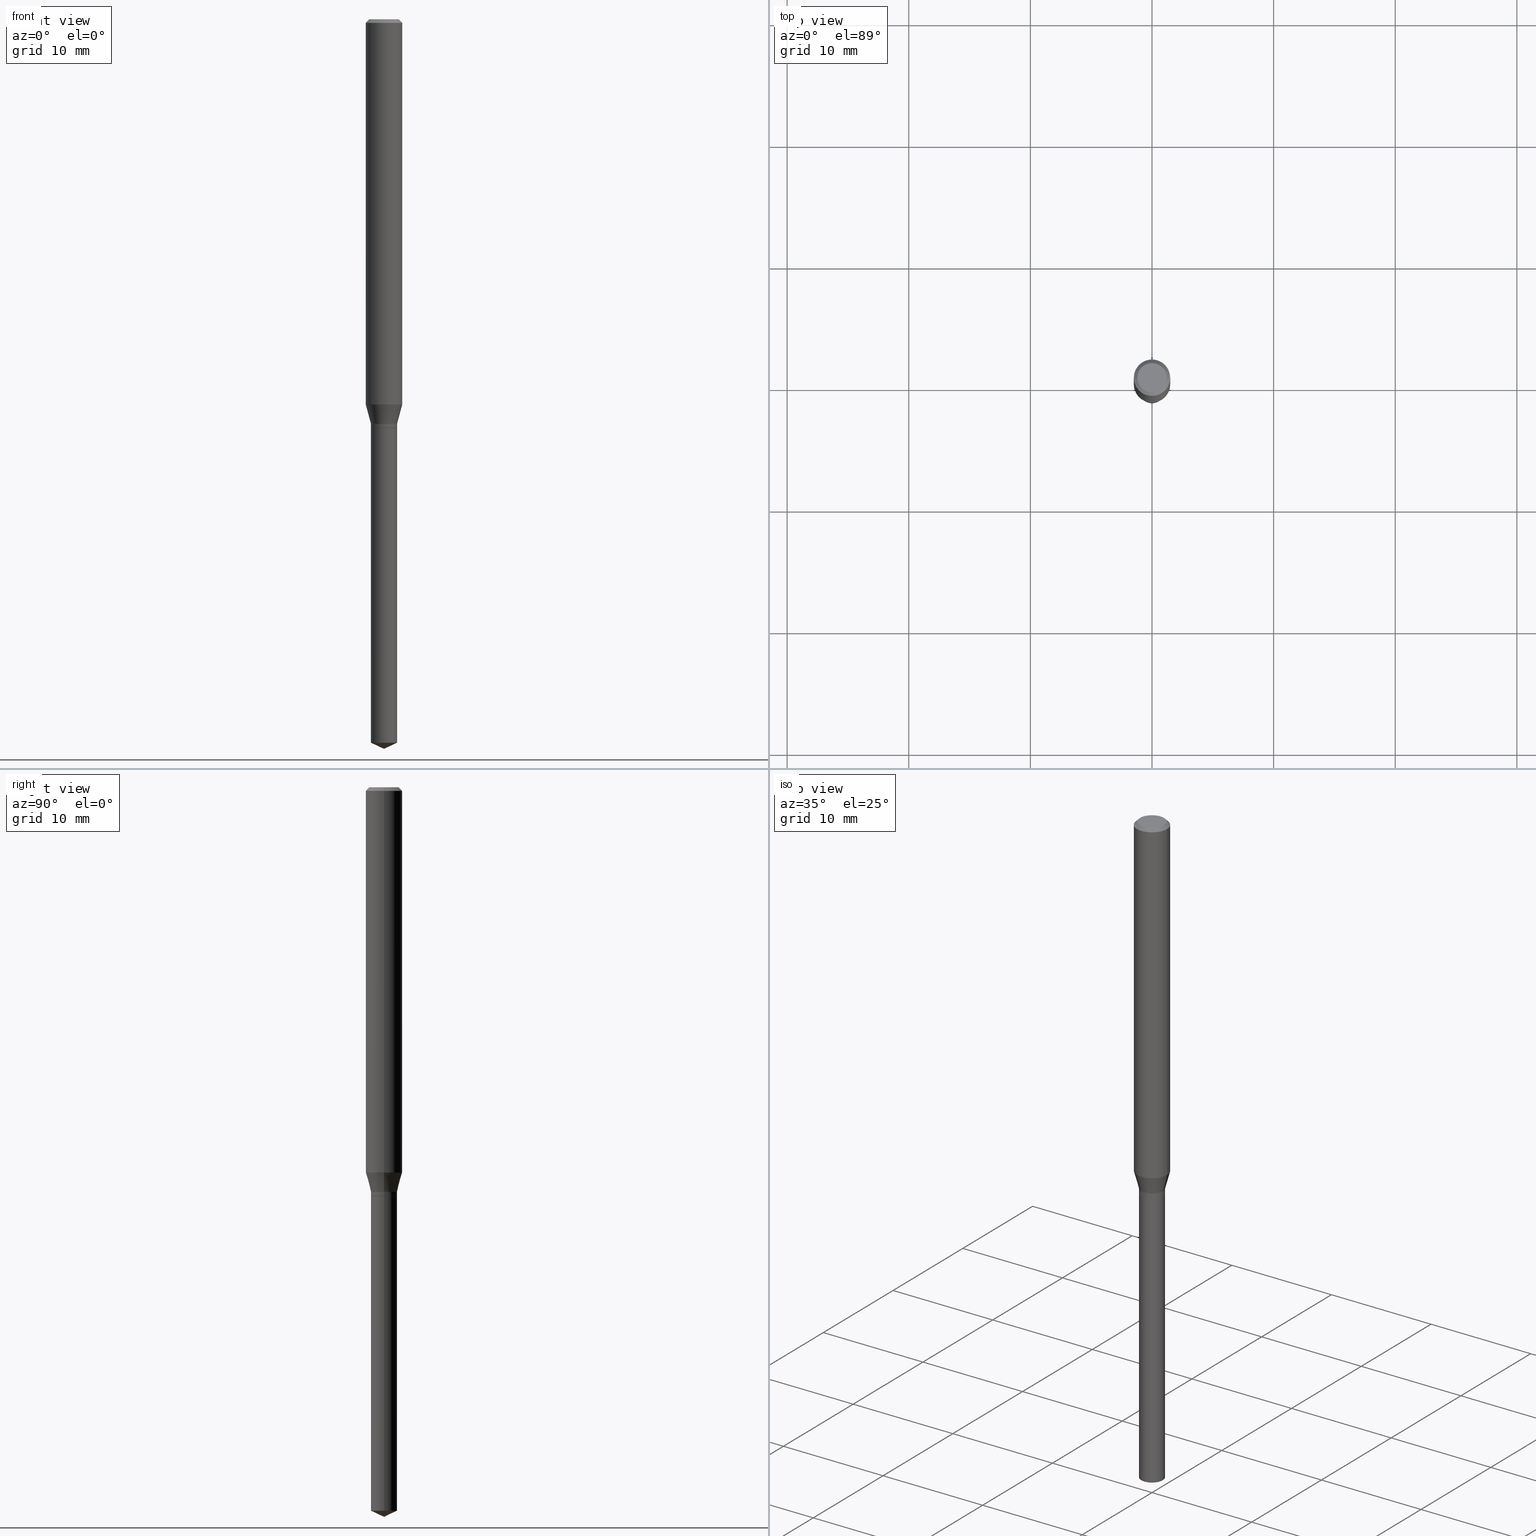
[diagram: canonical four-view strip — front | top / right | iso, engineering-drawing reading convention]
A machine part, canonical four-view strip (front | top / right | iso — engineering-drawing reading convention). The complete STEP part file that produces these views, byte-faithful:
ISO-10303-21;
HEADER;
FILE_DESCRIPTION (( 'STEP AP203' ),
    '1' );
FILE_NAME ('08193.STEP',
    '2024-04-24T13:45:29',
    ( '' ),
    ( '' ),
    'SwSTEP 2.0',
    'SolidWorks 2023',
    '' );
FILE_SCHEMA (( 'CONFIG_CONTROL_DESIGN' ));
ENDSEC;

DATA;
#1 = CARTESIAN_POINT ( 'NONE',  ( -0.04230000000000002508, -4.294229864691057211E-15, -1.322100000000000053 ) ) ;
#2 = ORIENTED_EDGE ( 'NONE', *, *, #438, .T. ) ;
#3 = CC_DESIGN_DATE_AND_TIME_ASSIGNMENT ( #237, #474, ( #322 ) ) ;
#4 = DIRECTION ( 'NONE',  ( -0.7071067811868312347, 7.493145998871379679E-15, 0.7071067811862637997 ) ) ;
#5 = LINE ( 'NONE', #273, #191 ) ;
#6 = ORIENTED_EDGE ( 'NONE', *, *, #185, .F. ) ;
#7 = CARTESIAN_POINT ( 'NONE',  ( 3.234377043060460432E-29, -4.617833218753942678E-15, -1.322599999999999776 ) ) ;
#8 = CARTESIAN_POINT ( 'NONE',  ( 0.04179999999999999688, -4.909721058681229119E-15, -1.322599999999999776 ) ) ;
#9 = VERTEX_POINT ( 'NONE', #319 ) ;
#10 = FACE_OUTER_BOUND ( 'NONE', #358, .T. ) ;
#11 = AXIS2_PLACEMENT_3D ( 'NONE', #379, #41, #77 ) ;
#12 = CARTESIAN_POINT ( 'NONE',  ( -0.04230000000000002508, 3.005595772265225568E-16, -2.080709543177826374E-30 ) ) ;
#13 =( CONVERSION_BASED_UNIT ( 'INCH', #423 ) LENGTH_UNIT ( ) NAMED_UNIT ( #478 ) );
#14 = DIRECTION ( 'NONE',  ( -2.445468806185136877E-29, 3.491481338843145188E-15, 1.000000000000000000 ) ) ;
#15 = EDGE_CURVE ( 'NONE', #143, #285, #325, .T. ) ;
#16 = AXIS2_PLACEMENT_3D ( 'NONE', #289, #444, #403 ) ;
#17 = DATE_AND_TIME ( #52, #241 ) ;
#18 = ORIENTED_EDGE ( 'NONE', *, *, #124, .T. ) ;
#19 = EDGE_CURVE ( 'NONE', #285, #278, #174, .T. ) ;
#20 = AXIS2_PLACEMENT_3D ( 'NONE', #232, #155, #86 ) ;
#21 = EDGE_CURVE ( 'NONE', #9, #128, #57, .T. ) ;
#22 = ORIENTED_EDGE ( 'NONE', *, *, #371, .T. ) ;
#23 = DIRECTION ( 'NONE',  ( 1.000000000000000000, -6.982962677686266711E-15, 0.000000000000000000 ) ) ;
#24 = AXIS2_PLACEMENT_3D ( 'NONE', #34, #336, #105 ) ;
#25 = SECURITY_CLASSIFICATION ( '', '', #323 ) ;
#26 = CARTESIAN_POINT ( 'NONE',  ( 3.203319589221911233E-29, -4.573491405750637276E-15, -1.309900000000000064 ) ) ;
#27 = EDGE_CURVE ( 'NONE', #451, #223, #212, .T. ) ;
#28 = CARTESIAN_POINT ( 'NONE',  ( 0.000000000000000000, 0.000000000000000000, 0.000000000000000000 ) ) ;
#29 = ORIENTED_EDGE ( 'NONE', *, *, #144, .T. ) ;
#30 = CARTESIAN_POINT ( 'NONE',  ( -0.05905000000000015098, -3.935656958967755285E-15, -1.247388148973221256 ) ) ;
#31 = LINE ( 'NONE', #328, #467 ) ;
#32 = EDGE_LOOP ( 'NONE', ( #480, #151, #266, #453 ) ) ;
#33 = FACE_OUTER_BOUND ( 'NONE', #161, .T. ) ;
#34 = CARTESIAN_POINT ( 'NONE',  ( 3.234377043060460432E-29, -4.617833218753942678E-15, -1.322599999999999776 ) ) ;
#35 = DIRECTION ( 'NONE',  ( 2.445468806185136597E-29, -3.491481338843145583E-15, -1.000000000000000000 ) ) ;
#36 = ADVANCED_FACE ( 'NONE', ( #365 ), #46, .T. ) ;
#37 = ORIENTED_EDGE ( 'NONE', *, *, #185, .T. ) ;
#38 = LINE ( 'NONE', #145, #122 ) ;
#39 = AXIS2_PLACEMENT_3D ( 'NONE', #481, #179, #374 ) ;
#40 = CYLINDRICAL_SURFACE ( 'NONE', #50, 0.04229999999999999732 ) ;
#41 = DIRECTION ( 'NONE',  ( -2.445468806185136597E-29, 3.491481338843145583E-15, 1.000000000000000000 ) ) ;
#42 = ORIENTED_EDGE ( 'NONE', *, *, #211, .F. ) ;
#43 = DIRECTION ( 'NONE',  ( -2.445468806185136597E-29, 3.491481338843145583E-15, 1.000000000000000000 ) ) ;
#44 = ORIENTED_EDGE ( 'NONE', *, *, #211, .T. ) ;
#45 = CYLINDRICAL_SURFACE ( 'NONE', #439, 0.04230000000000002508 ) ;
#46 = CONICAL_SURFACE ( 'NONE', #98, 0.04230000000000002508, 0.2617993877991502405 ) ;
#47 = ORGANIZATION ( 'UNSPECIFIED', 'UNSPECIFIED', '' ) ;
#48 = DIRECTION ( 'NONE',  ( -2.438088387897960049E-29, 3.491481338843145188E-15, 1.000000000000000000 ) ) ;
#49 = PLANE ( 'NONE',  #399 ) ;
#50 = AXIS2_PLACEMENT_3D ( 'NONE', #441, #341, #93 ) ;
#51 = CC_DESIGN_APPROVAL ( #311, ( #25 ) ) ;
#52 = CALENDAR_DATE ( 2024, 24, 4 ) ;
#53 = ORIENTED_EDGE ( 'NONE', *, *, #316, .T. ) ;
#54 = SHAPE_DEFINITION_REPRESENTATION ( #388, #256 ) ;
#55 = ORIENTED_EDGE ( 'NONE', *, *, #73, .T. ) ;
#56 = APPROVAL ( #231, 'UNSPECIFIED' ) ;
#57 = CIRCLE ( 'NONE', #406, 0.04229999999999999732 ) ;
#58 = APPROVAL_STATUS ( 'not_yet_approved' ) ;
#59 = EDGE_LOOP ( 'NONE', ( #18, #166, #140, #173 ) ) ;
#60 = DIRECTION ( 'NONE',  ( 1.000000000000000000, -6.982962677686266711E-15, 0.000000000000000000 ) ) ;
#61 = CC_DESIGN_PERSON_AND_ORGANIZATION_ASSIGNMENT ( #276, #126, ( #214 ) ) ;
#62 = DIRECTION ( 'NONE',  ( -2.445468806185136877E-29, 3.491481338843145188E-15, 1.000000000000000000 ) ) ;
#63 = LINE ( 'NONE', #414, #192 ) ;
#64 = AXIS2_PLACEMENT_3D ( 'NONE', #101, #257, #410 ) ;
#65 = CIRCLE ( 'NONE', #390, 0.04724000000000000421 ) ;
#66 = CARTESIAN_POINT ( 'NONE',  ( 3.234377043060460432E-29, -4.617833218753942678E-15, -1.322599999999999776 ) ) ;
#67 = CARTESIAN_POINT ( 'NONE',  ( 0.05905000000000007465, -4.123439461173745750E-16, 2.879382386107504074E-30 ) ) ;
#68 = ORIENTED_EDGE ( 'NONE', *, *, #81, .T. ) ;
#69 = DIRECTION ( 'NONE',  ( 1.000000000000000000, -6.982962677686261977E-15, 0.000000000000000000 ) ) ;
#70 = CARTESIAN_POINT ( 'NONE',  ( 3.234377043060460432E-29, -4.617833218753942678E-15, -1.322599999999999776 ) ) ;
#71 = EDGE_LOOP ( 'NONE', ( #203, #37, #485, #300 ) ) ;
#72 = FACE_OUTER_BOUND ( 'NONE', #294, .T. ) ;
#73 = EDGE_CURVE ( 'NONE', #215, #128, #221, .T. ) ;
#74 = VERTEX_POINT ( 'NONE', #30 ) ;
#75 = CIRCLE ( 'NONE', #64, 0.04229999999999999732 ) ;
#76 = AXIS2_PLACEMENT_3D ( 'NONE', #389, #35, #299 ) ;
#77 = DIRECTION ( 'NONE',  ( 1.000000000000000000, -6.982962677686266711E-15, 0.000000000000000000 ) ) ;
#78 = ORIENTED_EDGE ( 'NONE', *, *, #385, .F. ) ;
#79 = APPLICATION_PROTOCOL_DEFINITION ( 'international standard', 'config_control_design', 1994, #281 ) ;
#80 = FACE_OUTER_BOUND ( 'NONE', #110, .T. ) ;
#81 = EDGE_CURVE ( 'NONE', #451, #425, #337, .T. ) ;
#82 = DIRECTION ( 'NONE',  ( -0.7071067811865453523, 2.468850131082234184E-15, -0.7071067811865496822 ) ) ;
#83 = DIRECTION ( 'NONE',  ( 0.9063077870366530453, -4.853149677051424544E-15, 0.4226182617406927799 ) ) ;
#84 = APPROVAL_DATE_TIME ( #466, #56 ) ;
#85 = CIRCLE ( 'NONE', #440, 0.04230000000000002508 ) ;
#86 = DIRECTION ( 'NONE',  ( 1.000000000000000000, -6.982962677686277755E-15, 0.000000000000000000 ) ) ;
#87 = ADVANCED_FACE ( 'NONE', ( #33 ), #315, .T. ) ;
#88 = VERTEX_POINT ( 'NONE', #94 ) ;
#89 = PERSON_AND_ORGANIZATION ( #210, #47 ) ;
#90 = EDGE_LOOP ( 'NONE', ( #131, #68 ) ) ;
#91 = AXIS2_PLACEMENT_3D ( 'NONE', #295, #482, #333 ) ;
#92 = AXIS2_PLACEMENT_3D ( 'NONE', #70, #258, #60 ) ;
#93 = DIRECTION ( 'NONE',  ( 1.000000000000000000, -6.982962677686266711E-15, 0.000000000000000000 ) ) ;
#94 = CARTESIAN_POINT ( 'NONE',  ( -0.04179999999999999688, -4.318177128032109967E-15, -1.322599999999999776 ) ) ;
#95 = PLANE ( 'NONE',  #39 ) ;
#96 = DIRECTION ( 'NONE',  ( -2.445468806185136597E-29, 3.491481338843145583E-15, 1.000000000000000000 ) ) ;
#97 = CARTESIAN_POINT ( 'NONE',  ( 0.04179999999999999688, -4.909721058681229119E-15, -1.322599999999999776 ) ) ;
#98 = AXIS2_PLACEMENT_3D ( 'NONE', #26, #178, #69 ) ;
#99 = APPROVAL_PERSON_ORGANIZATION ( #470, #238, #244 ) ;
#100 = VERTEX_POINT ( 'NONE', #249 ) ;
#101 = CARTESIAN_POINT ( 'NONE',  ( 5.727960903011324402E-29, -8.178010102564001192E-15, -2.342275186060044145 ) ) ;
#102 = LINE ( 'NONE', #141, #419 ) ;
#103 = ORIENTED_EDGE ( 'NONE', *, *, #271, .F. ) ;
#104 = EDGE_CURVE ( 'NONE', #278, #288, #394, .T. ) ;
#105 = DIRECTION ( 'NONE',  ( 1.000000000000000000, -6.982962677686277755E-15, 0.000000000000000000 ) ) ;
#106 = CARTESIAN_POINT ( 'NONE',  ( 0.04229999999999999732, -4.913212540020072126E-15, -1.322599999999999776 ) ) ;
#107 = ORIENTED_EDGE ( 'NONE', *, *, #291, .F. ) ;
#108 = FACE_OUTER_BOUND ( 'NONE', #59, .T. ) ;
#109 = VECTOR ( 'NONE', #252, 39.37007874015748143 ) ;
#110 = EDGE_LOOP ( 'NONE', ( #415, #53, #321, #78 ) ) ;
#111 = AXIS2_PLACEMENT_3D ( 'NONE', #432, #349, #303 ) ;
#112 = CC_DESIGN_SECURITY_CLASSIFICATION ( #25, ( #214 ) ) ;
#113 = DIRECTION ( 'NONE',  ( -2.445468806185136597E-29, 3.491481338843145583E-15, 1.000000000000000000 ) ) ;
#114 = FACE_OUTER_BOUND ( 'NONE', #396, .T. ) ;
#115 = EDGE_CURVE ( 'NONE', #215, #297, #75, .T. ) ;
#116 = EDGE_LOOP ( 'NONE', ( #335, #29, #368 ) ) ;
#117 = MECHANICAL_CONTEXT ( 'NONE', #281, 'mechanical' ) ;
#118 = LINE ( 'NONE', #106, #479 ) ;
#119 = APPROVAL_ROLE ( '' ) ;
#120 = DIRECTION ( 'NONE',  ( -2.445468806185136597E-29, 3.491481338843145583E-15, 1.000000000000000000 ) ) ;
#121 = CARTESIAN_POINT ( 'NONE',  ( 0.04724000000000000421, -3.852183633974369345E-16, -3.380025165621689721E-19 ) ) ;
#122 = VECTOR ( 'NONE', #182, 39.37007874015748143 ) ;
#123 = PERSON_AND_ORGANIZATION_ROLE ( 'design_supplier' ) ;
#124 = EDGE_CURVE ( 'NONE', #100, #74, #168, .T. ) ;
#125 = MANIFOLD_SOLID_BREP ( 'Body-Move/Copy2[2]', #246 ) ;
#126 = PERSON_AND_ORGANIZATION_ROLE ( 'creator' ) ;
#127 = CALENDAR_DATE ( 2024, 24, 4 ) ;
#128 = VERTEX_POINT ( 'NONE', #424 ) ;
#129 = CIRCLE ( 'NONE', #199, 0.05904999999999999832 ) ;
#130 = CIRCLE ( 'NONE', #92, 0.04229999999999999732 ) ;
#131 = ORIENTED_EDGE ( 'NONE', *, *, #469, .T. ) ;
#132 = DIRECTION ( 'NONE',  ( 0.2588190451025215166, 1.565188264969620784E-15, 0.9659258262890679791 ) ) ;
#133 = CARTESIAN_POINT ( 'NONE',  ( 3.203319589221911233E-29, -4.573491405750637276E-15, -1.309900000000000064 ) ) ;
#134 = FACE_OUTER_BOUND ( 'NONE', #90, .T. ) ;
#135 = ORIENTED_EDGE ( 'NONE', *, *, #104, .T. ) ;
#136 = DIRECTION ( 'NONE',  ( 1.000000000000000000, -6.982962677686261977E-15, 0.000000000000000000 ) ) ;
#137 = DIRECTION ( 'NONE',  ( 2.445468806185136597E-29, -3.491481338843145583E-15, -1.000000000000000000 ) ) ;
#138 = ADVANCED_FACE ( 'NONE', ( #383 ), #45, .T. ) ;
#139 = CIRCLE ( 'NONE', #16, 0.04230000000000002508 ) ;
#140 = ORIENTED_EDGE ( 'NONE', *, *, #411, .F. ) ;
#141 = CARTESIAN_POINT ( 'NONE',  ( 5.776197320209293305E-29, -8.246878922347511025E-15, -2.362000000000000099 ) ) ;
#142 = DIRECTION ( 'NONE',  ( 1.000000000000000000, -6.982962677686261977E-15, 0.000000000000000000 ) ) ;
#143 = VERTEX_POINT ( 'NONE', #1 ) ;
#144 = EDGE_CURVE ( 'NONE', #184, #297, #5, .T. ) ;
#145 = CARTESIAN_POINT ( 'NONE',  ( -0.04230000000000002508, -4.272931828524114079E-15, -1.309900000000000064 ) ) ;
#146 = EDGE_LOOP ( 'NONE', ( #477, #240, #409, #107 ) ) ;
#147 = CYLINDRICAL_SURFACE ( 'NONE', #111, 0.05905000000000007465 ) ;
#148 = EDGE_CURVE ( 'NONE', #74, #177, #261, .T. ) ;
#149 = DIRECTION ( 'NONE',  ( -2.445468806185136597E-29, 3.491481338843145583E-15, 1.000000000000000000 ) ) ;
#150 = AXIS2_PLACEMENT_3D ( 'NONE', #471, #96, #136 ) ;
#151 = ORIENTED_EDGE ( 'NONE', *, *, #397, .T. ) ;
#152 = LOCAL_TIME ( 9, 45, 29.00000000000000000, #204 ) ;
#153 = CARTESIAN_POINT ( 'NONE',  ( 2.888098660104664204E-31, -4.123439461173780263E-17, -0.01181000000000007218 ) ) ;
#154 = CARTESIAN_POINT ( 'NONE',  ( 0.000000000000000000, 0.000000000000000000, 0.000000000000000000 ) ) ;
#155 = DIRECTION ( 'NONE',  ( -2.445468806185136597E-29, 3.491481338843145583E-15, 1.000000000000000000 ) ) ;
#156 = ADVANCED_FACE ( 'NONE', ( #80 ), #472, .T. ) ;
#157 = DIRECTION ( 'NONE',  ( 0.000000000000000000, 0.000000000000000000, 1.000000000000000000 ) ) ;
#158 = CONICAL_SURFACE ( 'NONE', #181, 0.04230000000000002508, 0.2617993877991502405 ) ;
#159 = PERSON_AND_ORGANIZATION ( #210, #47 ) ;
#160 = PERSON_AND_ORGANIZATION_ROLE ( 'classification_officer' ) ;
#161 = EDGE_LOOP ( 'NONE', ( #340, #446, #42 ) ) ;
#162 = EDGE_CURVE ( 'NONE', #177, #223, #129, .T. ) ;
#163 = EDGE_LOOP ( 'NONE', ( #308, #208, #372, #342 ) ) ;
#164 = VECTOR ( 'NONE', #14, 39.37007874015748143 ) ;
#165 = CC_DESIGN_APPROVAL ( #56, ( #322 ) ) ;
#166 = ORIENTED_EDGE ( 'NONE', *, *, #148, .T. ) ;
#167 = CARTESIAN_POINT ( 'NONE',  ( 3.234377043060460432E-29, -4.617833218753942678E-15, -1.322599999999999776 ) ) ;
#168 = CIRCLE ( 'NONE', #434, 0.05905000000000015098 ) ;
#169 = CIRCLE ( 'NONE', #418, 0.05904999999999999832 ) ;
#170 = CC_DESIGN_APPROVAL ( #238, ( #214 ) ) ;
#171 = CARTESIAN_POINT ( 'NONE',  ( 8.265746106709734507E-48, -1.180129479067563789E-33, -3.380025165646692144E-19 ) ) ;
#172 = DIRECTION ( 'NONE',  ( -2.445468806185136597E-29, 3.491481338843145583E-15, 1.000000000000000000 ) ) ;
#173 = ORIENTED_EDGE ( 'NONE', *, *, #371, .F. ) ;
#174 = LINE ( 'NONE', #407, #429 ) ;
#175 = DIRECTION ( 'NONE',  ( -1.000000000000000000, 6.982962677686266711E-15, 0.000000000000000000 ) ) ;
#176 = ADVANCED_FACE ( 'NONE', ( #236 ), #254, .T. ) ;
#177 = VERTEX_POINT ( 'NONE', #190 ) ;
#178 = DIRECTION ( 'NONE',  ( -2.445468806185136597E-29, 3.491481338843145583E-15, 1.000000000000000000 ) ) ;
#179 = DIRECTION ( 'NONE',  ( 2.438088387897960049E-29, -3.491481338843145188E-15, -1.000000000000000000 ) ) ;
#180 = FACE_OUTER_BOUND ( 'NONE', #32, .T. ) ;
#181 = AXIS2_PLACEMENT_3D ( 'NONE', #264, #339, #142 ) ;
#182 = DIRECTION ( 'NONE',  ( -0.2588190451025215166, 5.211531920934551042E-15, 0.9659258262890679791 ) ) ;
#183 = DIRECTION ( 'NONE',  ( 1.000000000000000000, -6.982962677686266711E-15, 4.876176775795935232E-29 ) ) ;
#184 = VERTEX_POINT ( 'NONE', #456 ) ;
#185 = EDGE_CURVE ( 'NONE', #88, #227, #447, .T. ) ;
#186 = DIRECTION ( 'NONE',  ( 2.438088387897960049E-29, -3.491481338843145188E-15, -1.000000000000000000 ) ) ;
#187 = CARTESIAN_POINT ( 'NONE',  ( -0.05905000000000007465, 4.195754854663396902E-16, -2.904631170795525395E-30 ) ) ;
#188 = ORIENTED_EDGE ( 'NONE', *, *, #397, .F. ) ;
#189 = CYLINDRICAL_SURFACE ( 'NONE', #255, 0.05905000000000007465 ) ;
#190 = CARTESIAN_POINT ( 'NONE',  ( -0.05904999999999999832, -1.778657934056575972E-15, -0.01181000000000007218 ) ) ;
#191 = VECTOR ( 'NONE', #83, 39.37007874015748143 ) ;
#192 = VECTOR ( 'NONE', #132, 39.37007874015748143 ) ;
#193 = PERSON_AND_ORGANIZATION ( #210, #47 ) ;
#194 = DIRECTION ( 'NONE',  ( -2.445468806185136877E-29, 3.491481338843145188E-15, 1.000000000000000000 ) ) ;
#195 = DIRECTION ( 'NONE',  ( -2.445468806185136597E-29, 3.491481338843145583E-15, 1.000000000000000000 ) ) ;
#196 = ADVANCED_FACE ( 'NONE', ( #114 ), #247, .T. ) ;
#197 = DIRECTION ( 'NONE',  ( -2.445468806185136597E-29, 3.491481338843145583E-15, 1.000000000000000000 ) ) ;
#198 = ADVANCED_FACE ( 'NONE', ( #180 ), #158, .T. ) ;
#199 = AXIS2_PLACEMENT_3D ( 'NONE', #153, #427, #430 ) ;
#200 = AXIS2_PLACEMENT_3D ( 'NONE', #167, #408, #23 ) ;
#201 = DATE_TIME_ROLE ( 'classification_date' ) ;
#202 = EDGE_CURVE ( 'NONE', #297, #9, #118, .T. ) ;
#203 = ORIENTED_EDGE ( 'NONE', *, *, #316, .F. ) ;
#204 = COORDINATED_UNIVERSAL_TIME_OFFSET ( 5, 0, .BEHIND. ) ;
#205 = ORIENTED_EDGE ( 'NONE', *, *, #271, .T. ) ;
#206 = VECTOR ( 'NONE', #62, 39.37007874015748143 ) ;
#207 = AXIS2_PLACEMENT_3D ( 'NONE', #28, #172, #452 ) ;
#208 = ORIENTED_EDGE ( 'NONE', *, *, #27, .T. ) ;
#209 = FACE_OUTER_BOUND ( 'NONE', #146, .T. ) ;
#210 = PERSON ( 'UNSPECIFIED', 'UNSPECIFIED', 'UNSPECIFIED', ('UNSPECIFIED'), ('UNSPECIFIED'), ('UNSPECIFIED') ) ;
#211 = EDGE_CURVE ( 'NONE', #297, #215, #431, .T. ) ;
#212 = LINE ( 'NONE', #216, #109 ) ;
#213 = DIRECTION ( 'NONE',  ( -2.445468806185136877E-29, 3.491481338843145188E-15, 1.000000000000000000 ) ) ;
#214 = PRODUCT_DEFINITION_FORMATION_WITH_SPECIFIED_SOURCE ( 'ANY', '', #219, .NOT_KNOWN. ) ;
#215 = VERTEX_POINT ( 'NONE', #344 ) ;
#216 = CARTESIAN_POINT ( 'NONE',  ( 0.05904999999999999832, -4.463468013801466955E-16, -0.01181000000000007218 ) ) ;
#217 = PRODUCT_RELATED_PRODUCT_CATEGORY ( 'detail', '', ( #219 ) ) ;
#218 = FACE_OUTER_BOUND ( 'NONE', #163, .T. ) ;
#219 = PRODUCT ( '08193', '08193', '', ( #117 ) ) ;
#220 = EDGE_LOOP ( 'NONE', ( #44, #55, #462, #413 ) ) ;
#221 = LINE ( 'NONE', #404, #206 ) ;
#222 = CARTESIAN_POINT ( 'NONE',  ( 2.888098660104664204E-31, -4.123439461173780263E-17, -0.01181000000000007218 ) ) ;
#223 = VERTEX_POINT ( 'NONE', #270 ) ;
#224 = DIRECTION ( 'NONE',  ( -2.445468806185136597E-29, 3.491481338843145583E-15, 1.000000000000000000 ) ) ;
#225 = CARTESIAN_POINT ( 'NONE',  ( 3.234377043060460432E-29, -4.617833218753942678E-15, -1.322599999999999776 ) ) ;
#226 = CC_DESIGN_PERSON_AND_ORGANIZATION_ASSIGNMENT ( #159, #160, ( #25 ) ) ;
#227 = VERTEX_POINT ( 'NONE', #8 ) ;
#228 = ORIENTED_EDGE ( 'NONE', *, *, #21, .T. ) ;
#229 = DIRECTION ( 'NONE',  ( 1.000000000000000000, -6.982962677686266711E-15, 4.876176775795936353E-29 ) ) ;
#230 = DIRECTION ( 'NONE',  ( 1.000000000000000000, -6.982962677686265922E-15, 4.876176775795935793E-29 ) ) ;
#231 = APPROVAL_STATUS ( 'not_yet_approved' ) ;
#232 = CARTESIAN_POINT ( 'NONE',  ( 3.234377043060460432E-29, -4.617833218753942678E-15, -1.322599999999999776 ) ) ;
#233 = AXIS2_PLACEMENT_3D ( 'NONE', #225, #149, #464 ) ;
#234 = AXIS2_PLACEMENT_3D ( 'NONE', #301, #195, #454 ) ;
#235 = PERSON_AND_ORGANIZATION ( #210, #47 ) ;
#236 = FACE_OUTER_BOUND ( 'NONE', #71, .T. ) ;
#237 = DATE_AND_TIME ( #356, #152 ) ;
#238 = APPROVAL ( #362, 'UNSPECIFIED' ) ;
#239 = VECTOR ( 'NONE', #213, 39.37007874015748143 ) ;
#240 = ORIENTED_EDGE ( 'NONE', *, *, #115, .T. ) ;
#241 = LOCAL_TIME ( 9, 45, 29.00000000000000000, #242 ) ;
#242 = COORDINATED_UNIVERSAL_TIME_OFFSET ( 5, 0, .BEHIND. ) ;
#243 = APPLICATION_CONTEXT ( 'configuration controlled 3d designs of mechanical parts and assemblies' ) ;
#244 = APPROVAL_ROLE ( '' ) ;
#245 = APPROVAL_DATE_TIME ( #17, #238 ) ;
#246 = CLOSED_SHELL ( 'NONE', ( #156, #393, #468, #36, #380, #138, #198, #435, #196, #346, #251, #176 ) ) ;
#247 = CONICAL_SURFACE ( 'NONE', #76, 0.05904999999999999832, 0.7853981633974452814 ) ;
#248 = FACE_OUTER_BOUND ( 'NONE', #220, .T. ) ;
#249 = CARTESIAN_POINT ( 'NONE',  ( 0.05905000000000015098, -4.767576390551470487E-15, -1.247388148973221256 ) ) ;
#250 = CARTESIAN_POINT ( 'NONE',  ( -9.050210213589845843E-28, 1.292130163076976058E-13, 37.00807874015747956 ) ) ;
#251 = ADVANCED_FACE ( 'NONE', ( #305 ), #461, .F. ) ;
#252 = DIRECTION ( 'NONE',  ( 0.7071067811865453523, -7.319954787623248157E-15, -0.7071067811865496822 ) ) ;
#253 = CARTESIAN_POINT ( 'NONE',  ( 0.04229999999999999732, -8.473389423830130639E-15, -2.342275186060044145 ) ) ;
#254 = CONICAL_SURFACE ( 'NONE', #233, 0.04179999999999999688, 0.7853981633978495136 ) ;
#255 = AXIS2_PLACEMENT_3D ( 'NONE', #392, #458, #229 ) ;
#256 = ADVANCED_BREP_SHAPE_REPRESENTATION ( '08193', ( #290, #125, #286 ), #360 ) ;
#257 = DIRECTION ( 'NONE',  ( -2.445468806185136597E-29, 3.491481338843145583E-15, 1.000000000000000000 ) ) ;
#258 = DIRECTION ( 'NONE',  ( -2.445468806185136597E-29, 3.491481338843145583E-15, 1.000000000000000000 ) ) ;
#259 = ORIENTED_EDGE ( 'NONE', *, *, #148, .F. ) ;
#260 = DIRECTION ( 'NONE',  ( -2.445468806185136597E-29, 3.491481338843145583E-15, 1.000000000000000000 ) ) ;
#261 = LINE ( 'NONE', #187, #164 ) ;
#262 = ORIENTED_EDGE ( 'NONE', *, *, #27, .F. ) ;
#263 = CARTESIAN_POINT ( 'NONE',  ( -0.05904999999999999832, 3.711095515056362547E-16, -0.01181000000000007218 ) ) ;
#264 = CARTESIAN_POINT ( 'NONE',  ( 3.203319589221911233E-29, -4.573491405750637276E-15, -1.309900000000000064 ) ) ;
#265 = CIRCLE ( 'NONE', #24, 0.04179999999999999688 ) ;
#266 = ORIENTED_EDGE ( 'NONE', *, *, #359, .T. ) ;
#267 = CARTESIAN_POINT ( 'NONE',  ( 3.234377043060460432E-29, -4.617833218753942678E-15, -1.322599999999999776 ) ) ;
#268 = EDGE_LOOP ( 'NONE', ( #135, #381, #437, #326 ) ) ;
#269 = PERSON_AND_ORGANIZATION ( #210, #47 ) ;
#270 = CARTESIAN_POINT ( 'NONE',  ( 0.05904999999999999832, -4.535783407291118600E-16, -0.01181000000000007218 ) ) ;
#271 = EDGE_CURVE ( 'NONE', #143, #288, #387, .T. ) ;
#272 = COORDINATED_UNIVERSAL_TIME_OFFSET ( 5, 0, .BEHIND. ) ;
#273 = CARTESIAN_POINT ( 'NONE',  ( 5.776197320209293305E-29, -8.246878922347511025E-15, -2.362000000000000099 ) ) ;
#274 = CARTESIAN_POINT ( 'NONE',  ( 8.265746106709734507E-48, -1.180129479067563789E-33, -3.380025165646692144E-19 ) ) ;
#275 = CC_DESIGN_PERSON_AND_ORGANIZATION_ASSIGNMENT ( #269, #314, ( #219 ) ) ;
#276 = PERSON_AND_ORGANIZATION ( #210, #47 ) ;
#277 = APPROVAL_PERSON_ORGANIZATION ( #193, #56, #119 ) ;
#278 = VERTEX_POINT ( 'NONE', #350 ) ;
#279 = CALENDAR_DATE ( 2024, 24, 4 ) ;
#280 = EDGE_LOOP ( 'NONE', ( #228, #324 ) ) ;
#281 = APPLICATION_CONTEXT ( 'configuration controlled 3d designs of mechanical parts and assemblies' ) ;
#282 = EDGE_CURVE ( 'NONE', #288, #74, #38, .T. ) ;
#283 = DATE_AND_TIME ( #127, #460 ) ;
#284 = ORIENTED_EDGE ( 'NONE', *, *, #15, .T. ) ;
#285 = VERTEX_POINT ( 'NONE', #487 ) ;
#286 = AXIS2_PLACEMENT_3D ( 'NONE', #154, #157, #386 ) ;
#287 = ADVANCED_FACE ( 'NONE', ( #209 ), #40, .T. ) ;
#288 = VERTEX_POINT ( 'NONE', #364 ) ;
#289 = CARTESIAN_POINT ( 'NONE',  ( 3.233154308657369312E-29, -4.616087478084523541E-15, -1.322100000000000053 ) ) ;
#290 = MANIFOLD_SOLID_BREP ( 'Body-Move/Copy2[1]', #355 ) ;
#291 = EDGE_CURVE ( 'NONE', #128, #9, #130, .T. ) ;
#292 = DIRECTION ( 'NONE',  ( -2.445468806185136877E-29, 3.491481338843145188E-15, 1.000000000000000000 ) ) ;
#293 = CYLINDRICAL_SURFACE ( 'NONE', #200, 0.04229999999999999732 ) ;
#294 = EDGE_LOOP ( 'NONE', ( #475, #205, #302, #402 ) ) ;
#295 = CARTESIAN_POINT ( 'NONE',  ( -9.050210213589845843E-28, 1.292130163076976058E-13, 37.00807874015747956 ) ) ;
#296 = LINE ( 'NONE', #67, #239 ) ;
#297 = VERTEX_POINT ( 'NONE', #253 ) ;
#298 = DIRECTION ( 'NONE',  ( 1.000000000000000000, -6.982962677686266711E-15, 0.000000000000000000 ) ) ;
#299 = DIRECTION ( 'NONE',  ( -1.000000000000000000, 6.982962677686266711E-15, 0.000000000000000000 ) ) ;
#300 = ORIENTED_EDGE ( 'NONE', *, *, #15, .F. ) ;
#301 = CARTESIAN_POINT ( 'NONE',  ( 3.050448807519030637E-29, -4.355232444434095567E-15, -1.247388148973221256 ) ) ;
#302 = ORIENTED_EDGE ( 'NONE', *, *, #104, .F. ) ;
#303 = DIRECTION ( 'NONE',  ( 1.000000000000000000, -6.982962677686266711E-15, 4.876176775795936353E-29 ) ) ;
#304 = CARTESIAN_POINT ( 'NONE',  ( 3.050448807519030637E-29, -4.355232444434095567E-15, -1.247388148973221256 ) ) ;
#305 = FACE_OUTER_BOUND ( 'NONE', #488, .T. ) ;
#306 = VECTOR ( 'NONE', #82, 39.37007874015748143 ) ;
#307 = LOCAL_TIME ( 9, 45, 29.00000000000000000, #318 ) ;
#308 = ORIENTED_EDGE ( 'NONE', *, *, #81, .F. ) ;
#309 = DIRECTION ( 'NONE',  ( 1.000000000000000000, -6.982962677686266711E-15, 4.876185090822587894E-29 ) ) ;
#310 = DIRECTION ( 'NONE',  ( 1.000000000000000000, -6.982962677686271444E-15, 0.000000000000000000 ) ) ;
#311 = APPROVAL ( #58, 'UNSPECIFIED' ) ;
#312 = CARTESIAN_POINT ( 'NONE',  ( 3.234377043060460432E-29, -4.617833218753942678E-15, -1.322599999999999776 ) ) ;
#313 = UNCERTAINTY_MEASURE_WITH_UNIT (LENGTH_MEASURE( 1.000000000000000082E-05 ), #13, 'distance_accuracy_value', 'NONE');
#314 = PERSON_AND_ORGANIZATION_ROLE ( 'design_owner' ) ;
#315 = CONICAL_SURFACE ( 'NONE', #91, 84.42940631927558570, 1.134464013796321558 ) ;
#316 = EDGE_CURVE ( 'NONE', #88, #143, #31, .T. ) ;
#317 = DATE_AND_TIME ( #279, #307 ) ;
#318 = COORDINATED_UNIVERSAL_TIME_OFFSET ( 5, 0, .BEHIND. ) ;
#319 = CARTESIAN_POINT ( 'NONE',  ( 0.04229999999999999732, -4.913212540020072126E-15, -1.322599999999999776 ) ) ;
#320 = AXIS2_PLACEMENT_3D ( 'NONE', #171, #373, #330 ) ;
#321 = ORIENTED_EDGE ( 'NONE', *, *, #363, .F. ) ;
#322 = PRODUCT_DEFINITION ( 'UNKNOWN', '', #214, #367 ) ;
#323 = SECURITY_CLASSIFICATION_LEVEL ( 'unclassified' ) ;
#324 = ORIENTED_EDGE ( 'NONE', *, *, #291, .T. ) ;
#325 = CIRCLE ( 'NONE', #150, 0.04230000000000002508 ) ;
#326 = ORIENTED_EDGE ( 'NONE', *, *, #359, .F. ) ;
#327 = ADVANCED_FACE ( 'NONE', ( #248 ), #293, .T. ) ;
#328 = CARTESIAN_POINT ( 'NONE',  ( -0.04179999999999999688, -4.320826355206221168E-15, -1.322599999999999776 ) ) ;
#329 = APPROVAL_PERSON_ORGANIZATION ( #398, #311, #361 ) ;
#330 = DIRECTION ( 'NONE',  ( 1.000000000000000000, -6.982962677686266711E-15, 4.876185090822587894E-29 ) ) ;
#331 = LINE ( 'NONE', #97, #489 ) ;
#332 = ORIENTED_EDGE ( 'NONE', *, *, #162, .F. ) ;
#333 = DIRECTION ( 'NONE',  ( 1.000000000000000000, -6.982962677686267499E-15, 0.000000000000000000 ) ) ;
#334 = DIRECTION ( 'NONE',  ( 1.000000000000000000, -6.982962677686261977E-15, 0.000000000000000000 ) ) ;
#335 = ORIENTED_EDGE ( 'NONE', *, *, #401, .F. ) ;
#336 = DIRECTION ( 'NONE',  ( -2.445468806185136597E-29, 3.491481338843145583E-15, 1.000000000000000000 ) ) ;
#337 = CIRCLE ( 'NONE', #320, 0.04724000000000000421 ) ;
#338 = AXIS2_PLACEMENT_3D ( 'NONE', #267, #48, #230 ) ;
#339 = DIRECTION ( 'NONE',  ( -2.445468806185136597E-29, 3.491481338843145583E-15, 1.000000000000000000 ) ) ;
#340 = ORIENTED_EDGE ( 'NONE', *, *, #144, .F. ) ;
#341 = DIRECTION ( 'NONE',  ( -2.445468806185136597E-29, 3.491481338843145583E-15, 1.000000000000000000 ) ) ;
#342 = ORIENTED_EDGE ( 'NONE', *, *, #438, .F. ) ;
#343 = LINE ( 'NONE', #263, #306 ) ;
#344 = CARTESIAN_POINT ( 'NONE',  ( -0.04229999999999999732, -7.877450525337478783E-15, -2.342275186060044145 ) ) ;
#345 = ORIENTED_EDGE ( 'NONE', *, *, #469, .F. ) ;
#346 = ADVANCED_FACE ( 'NONE', ( #134 ), #95, .F. ) ;
#347 = DIRECTION ( 'NONE',  ( 1.000000000000000000, -6.982962677686277755E-15, 0.000000000000000000 ) ) ;
#348 = LOCAL_TIME ( 9, 45, 29.00000000000000000, #272 ) ;
#349 = DIRECTION ( 'NONE',  ( -2.445468806185136597E-29, 3.491481338843145583E-15, 1.000000000000000000 ) ) ;
#350 = CARTESIAN_POINT ( 'NONE',  ( 0.04230000000000002508, -4.868870727016765935E-15, -1.309900000000000064 ) ) ;
#351 = DIRECTION ( 'NONE',  ( -1.000000000000000000, 6.982962677686265922E-15, -4.876176775795935793E-29 ) ) ;
#352 = CC_DESIGN_DATE_AND_TIME_ASSIGNMENT ( #283, #201, ( #25 ) ) ;
#353 = FACE_OUTER_BOUND ( 'NONE', #280, .T. ) ;
#354 = AXIS2_PLACEMENT_3D ( 'NONE', #312, #43, #347 ) ;
#355 = CLOSED_SHELL ( 'NONE', ( #327, #87, #375, #287, #476 ) ) ;
#356 = CALENDAR_DATE ( 2024, 24, 4 ) ;
#357 = EDGE_LOOP ( 'NONE', ( #103, #284, #457, #188 ) ) ;
#358 = EDGE_LOOP ( 'NONE', ( #259, #376, #22, #332 ) ) ;
#359 = EDGE_CURVE ( 'NONE', #278, #100, #63, .T. ) ;
#360 =( GEOMETRIC_REPRESENTATION_CONTEXT ( 3 ) GLOBAL_UNCERTAINTY_ASSIGNED_CONTEXT ( ( #313 ) ) GLOBAL_UNIT_ASSIGNED_CONTEXT ( ( #13, #382, #463 ) ) REPRESENTATION_CONTEXT ( 'NONE', 'WORKASPACE' ) );
#361 = APPROVAL_ROLE ( '' ) ;
#362 = APPROVAL_STATUS ( 'not_yet_approved' ) ;
#363 = EDGE_CURVE ( 'NONE', #285, #143, #139, .T. ) ;
#364 = CARTESIAN_POINT ( 'NONE',  ( -0.04230000000000002508, -4.294229864691057211E-15, -1.309900000000000064 ) ) ;
#365 = FACE_OUTER_BOUND ( 'NONE', #268, .T. ) ;
#366 = DIRECTION ( 'NONE',  ( 1.000000000000000000, -6.982962677686267499E-15, 0.000000000000000000 ) ) ;
#367 = DESIGN_CONTEXT ( 'detailed design', #243, 'design' ) ;
#368 = ORIENTED_EDGE ( 'NONE', *, *, #115, .F. ) ;
#369 = DIRECTION ( 'NONE',  ( 1.000000000000000000, -6.982962677686266711E-15, 0.000000000000000000 ) ) ;
#370 = CARTESIAN_POINT ( 'NONE',  ( 2.888098660104664204E-31, -4.123439461173780263E-17, -0.01181000000000007218 ) ) ;
#371 = EDGE_CURVE ( 'NONE', #100, #223, #296, .T. ) ;
#372 = ORIENTED_EDGE ( 'NONE', *, *, #411, .T. ) ;
#373 = DIRECTION ( 'NONE',  ( -2.445468806185136597E-29, 3.491481338843145583E-15, 1.000000000000000000 ) ) ;
#374 = DIRECTION ( 'NONE',  ( -1.000000000000000000, 6.982962677686265922E-15, -4.876176775795935793E-29 ) ) ;
#375 = ADVANCED_FACE ( 'NONE', ( #442 ), #395, .T. ) ;
#376 = ORIENTED_EDGE ( 'NONE', *, *, #455, .T. ) ;
#377 = CARTESIAN_POINT ( 'NONE',  ( -0.04724000000000000421, 3.504923541997677355E-16, -3.380025165670481712E-19 ) ) ;
#378 = VECTOR ( 'NONE', #194, 39.37007874015748143 ) ;
#379 = CARTESIAN_POINT ( 'NONE',  ( 5.727960903011324402E-29, -8.178010102564001192E-15, -2.342275186060044145 ) ) ;
#380 = ADVANCED_FACE ( 'NONE', ( #72 ), #490, .T. ) ;
#381 = ORIENTED_EDGE ( 'NONE', *, *, #282, .T. ) ;
#382 =( NAMED_UNIT ( * ) PLANE_ANGLE_UNIT ( ) SI_UNIT ( $, .RADIAN. ) );
#383 = FACE_OUTER_BOUND ( 'NONE', #357, .T. ) ;
#384 = ORIENTED_EDGE ( 'NONE', *, *, #421, .F. ) ;
#385 = EDGE_CURVE ( 'NONE', #227, #285, #331, .T. ) ;
#386 = DIRECTION ( 'NONE',  ( 1.000000000000000000, 0.000000000000000000, 0.000000000000000000 ) ) ;
#387 = LINE ( 'NONE', #12, #378 ) ;
#388 = PRODUCT_DEFINITION_SHAPE ( 'NONE', 'NONE',  #322 ) ;
#389 = CARTESIAN_POINT ( 'NONE',  ( 2.888098660104664204E-31, -4.123439461173780263E-17, -0.01181000000000007218 ) ) ;
#390 = AXIS2_PLACEMENT_3D ( 'NONE', #274, #197, #309 ) ;
#391 = PERSON_AND_ORGANIZATION_ROLE ( 'creator' ) ;
#392 = CARTESIAN_POINT ( 'NONE',  ( 0.000000000000000000, 0.000000000000000000, 0.000000000000000000 ) ) ;
#393 = ADVANCED_FACE ( 'NONE', ( #218 ), #436, .T. ) ;
#394 = CIRCLE ( 'NONE', #416, 0.04230000000000002508 ) ;
#395 = CONICAL_SURFACE ( 'NONE', #473, 84.42940631927558570, 1.134464013796321558 ) ;
#396 = EDGE_LOOP ( 'NONE', ( #262, #345, #2, #422 ) ) ;
#397 = EDGE_CURVE ( 'NONE', #288, #278, #85, .T. ) ;
#398 = PERSON_AND_ORGANIZATION ( #210, #47 ) ;
#399 = AXIS2_PLACEMENT_3D ( 'NONE', #7, #186, #351 ) ;
#400 = COORDINATED_UNIVERSAL_TIME_OFFSET ( 5, 0, .BEHIND. ) ;
#401 = EDGE_CURVE ( 'NONE', #184, #215, #102, .T. ) ;
#402 = ORIENTED_EDGE ( 'NONE', *, *, #19, .F. ) ;
#403 = DIRECTION ( 'NONE',  ( 1.000000000000000000, -6.982962677686261977E-15, 0.000000000000000000 ) ) ;
#404 = CARTESIAN_POINT ( 'NONE',  ( -0.04229999999999999732, -4.317273641527420269E-15, -1.322599999999999776 ) ) ;
#405 = DIRECTION ( 'NONE',  ( -2.445468806185136597E-29, 3.491481338843145583E-15, 1.000000000000000000 ) ) ;
#406 = AXIS2_PLACEMENT_3D ( 'NONE', #66, #443, #369 ) ;
#407 = CARTESIAN_POINT ( 'NONE',  ( 0.04230000000000002508, -2.953793212661292507E-16, 2.062622776161681872E-30 ) ) ;
#408 = DIRECTION ( 'NONE',  ( -2.445468806185136597E-29, 3.491481338843145583E-15, 1.000000000000000000 ) ) ;
#409 = ORIENTED_EDGE ( 'NONE', *, *, #202, .T. ) ;
#410 = DIRECTION ( 'NONE',  ( 1.000000000000000000, -6.982962677686266711E-15, 0.000000000000000000 ) ) ;
#411 = EDGE_CURVE ( 'NONE', #223, #177, #169, .T. ) ;
#412 = DIRECTION ( 'NONE',  ( -0.9063077870366530453, 7.915267918739014631E-15, 0.4226182617406927799 ) ) ;
#413 = ORIENTED_EDGE ( 'NONE', *, *, #202, .F. ) ;
#414 = CARTESIAN_POINT ( 'NONE',  ( 0.04230000000000002508, -4.868870727016765935E-15, -1.309900000000000064 ) ) ;
#415 = ORIENTED_EDGE ( 'NONE', *, *, #421, .T. ) ;
#416 = AXIS2_PLACEMENT_3D ( 'NONE', #133, #486, #448 ) ;
#417 =( LENGTH_UNIT ( ) NAMED_UNIT ( * ) SI_UNIT ( $, .METRE. ) );
#418 = AXIS2_PLACEMENT_3D ( 'NONE', #222, #260, #298 ) ;
#419 = VECTOR ( 'NONE', #412, 39.37007874015748143 ) ;
#420 = CARTESIAN_POINT ( 'NONE',  ( 0.000000000000000000, 0.000000000000000000, 0.000000000000000000 ) ) ;
#421 = EDGE_CURVE ( 'NONE', #227, #88, #265, .T. ) ;
#422 = ORIENTED_EDGE ( 'NONE', *, *, #162, .T. ) ;
#423 = LENGTH_MEASURE_WITH_UNIT ( LENGTH_MEASURE( 0.02539999999999999897 ), #417 );
#424 = CARTESIAN_POINT ( 'NONE',  ( -0.04229999999999999732, -6.097362083432448737E-15, -1.322599999999999776 ) ) ;
#425 = VERTEX_POINT ( 'NONE', #377 ) ;
#426 = APPLICATION_PROTOCOL_DEFINITION ( 'international standard', 'config_control_design', 1994, #243 ) ;
#427 = DIRECTION ( 'NONE',  ( -2.445468806185136597E-29, 3.491481338843145583E-15, 1.000000000000000000 ) ) ;
#428 = CALENDAR_DATE ( 2024, 24, 4 ) ;
#429 = VECTOR ( 'NONE', #292, 39.37007874015748143 ) ;
#430 = DIRECTION ( 'NONE',  ( 1.000000000000000000, -6.982962677686266711E-15, 0.000000000000000000 ) ) ;
#431 = CIRCLE ( 'NONE', #11, 0.04229999999999999732 ) ;
#432 = CARTESIAN_POINT ( 'NONE',  ( 0.000000000000000000, 0.000000000000000000, 0.000000000000000000 ) ) ;
#433 = APPROVAL_DATE_TIME ( #317, #311 ) ;
#434 = AXIS2_PLACEMENT_3D ( 'NONE', #304, #113, #310 ) ;
#435 = ADVANCED_FACE ( 'NONE', ( #10 ), #147, .T. ) ;
#436 = CONICAL_SURFACE ( 'NONE', #459, 0.05904999999999999832, 0.7853981633974452814 ) ;
#437 = ORIENTED_EDGE ( 'NONE', *, *, #124, .F. ) ;
#438 = EDGE_CURVE ( 'NONE', #425, #177, #343, .T. ) ;
#439 = AXIS2_PLACEMENT_3D ( 'NONE', #420, #120, #183 ) ;
#440 = AXIS2_PLACEMENT_3D ( 'NONE', #450, #224, #334 ) ;
#441 = CARTESIAN_POINT ( 'NONE',  ( 3.234377043060460432E-29, -4.617833218753942678E-15, -1.322599999999999776 ) ) ;
#442 = FACE_OUTER_BOUND ( 'NONE', #116, .T. ) ;
#443 = DIRECTION ( 'NONE',  ( -2.445468806185136597E-29, 3.491481338843145583E-15, 1.000000000000000000 ) ) ;
#444 = DIRECTION ( 'NONE',  ( -2.445468806185136597E-29, 3.491481338843145583E-15, 1.000000000000000000 ) ) ;
#445 = CC_DESIGN_PERSON_AND_ORGANIZATION_ASSIGNMENT ( #235, #391, ( #322 ) ) ;
#446 = ORIENTED_EDGE ( 'NONE', *, *, #401, .T. ) ;
#447 = CIRCLE ( 'NONE', #20, 0.04179999999999999688 ) ;
#448 = DIRECTION ( 'NONE',  ( 1.000000000000000000, -6.982962677686261977E-15, 0.000000000000000000 ) ) ;
#449 = CIRCLE ( 'NONE', #234, 0.05905000000000015098 ) ;
#450 = CARTESIAN_POINT ( 'NONE',  ( 3.203319589221911233E-29, -4.573491405750637276E-15, -1.309900000000000064 ) ) ;
#451 = VERTEX_POINT ( 'NONE', #121 ) ;
#452 = DIRECTION ( 'NONE',  ( 1.000000000000000000, -6.982962677686266711E-15, 4.876176775795935232E-29 ) ) ;
#453 = ORIENTED_EDGE ( 'NONE', *, *, #455, .F. ) ;
#454 = DIRECTION ( 'NONE',  ( 1.000000000000000000, -6.982962677686271444E-15, 0.000000000000000000 ) ) ;
#455 = EDGE_CURVE ( 'NONE', #74, #100, #449, .T. ) ;
#456 = CARTESIAN_POINT ( 'NONE',  ( 5.776197320209293305E-29, -8.246878922347511025E-15, -2.362000000000000099 ) ) ;
#457 = ORIENTED_EDGE ( 'NONE', *, *, #19, .T. ) ;
#458 = DIRECTION ( 'NONE',  ( -2.445468806185136597E-29, 3.491481338843145583E-15, 1.000000000000000000 ) ) ;
#459 = AXIS2_PLACEMENT_3D ( 'NONE', #370, #137, #175 ) ;
#460 = LOCAL_TIME ( 9, 45, 29.00000000000000000, #400 ) ;
#461 = PLANE ( 'NONE',  #338 ) ;
#462 = ORIENTED_EDGE ( 'NONE', *, *, #21, .F. ) ;
#463 =( NAMED_UNIT ( * ) SI_UNIT ( $, .STERADIAN. ) SOLID_ANGLE_UNIT ( ) );
#464 = DIRECTION ( 'NONE',  ( 1.000000000000000000, -6.982962677686277755E-15, 0.000000000000000000 ) ) ;
#465 = DIRECTION ( 'NONE',  ( -2.445468806185136877E-29, 3.491481338843145188E-15, 1.000000000000000000 ) ) ;
#466 = DATE_AND_TIME ( #428, #348 ) ;
#467 = VECTOR ( 'NONE', #4, 39.37007874015748143 ) ;
#468 = ADVANCED_FACE ( 'NONE', ( #108 ), #189, .T. ) ;
#469 = EDGE_CURVE ( 'NONE', #425, #451, #65, .T. ) ;
#470 = PERSON_AND_ORGANIZATION ( #210, #47 ) ;
#471 = CARTESIAN_POINT ( 'NONE',  ( 3.233154308657369312E-29, -4.616087478084523541E-15, -1.322100000000000053 ) ) ;
#472 = CONICAL_SURFACE ( 'NONE', #354, 0.04179999999999999688, 0.7853981633978495136 ) ;
#473 = AXIS2_PLACEMENT_3D ( 'NONE', #250, #405, #366 ) ;
#474 = DATE_TIME_ROLE ( 'creation_date' ) ;
#475 = ORIENTED_EDGE ( 'NONE', *, *, #363, .T. ) ;
#476 = ADVANCED_FACE ( 'NONE', ( #353 ), #49, .F. ) ;
#477 = ORIENTED_EDGE ( 'NONE', *, *, #73, .F. ) ;
#478 = DIMENSIONAL_EXPONENTS ( 1.000000000000000000, 0.000000000000000000, 0.000000000000000000, 0.000000000000000000, 0.000000000000000000, 0.000000000000000000, 0.000000000000000000 ) ;
#479 = VECTOR ( 'NONE', #465, 39.37007874015748143 ) ;
#480 = ORIENTED_EDGE ( 'NONE', *, *, #282, .F. ) ;
#481 = CARTESIAN_POINT ( 'NONE',  ( 4.132873053354867254E-48, -5.900647395337818946E-34, -1.690012582823346072E-19 ) ) ;
#482 = DIRECTION ( 'NONE',  ( -2.445468806185136597E-29, 3.491481338843145583E-15, 1.000000000000000000 ) ) ;
#483 = DIRECTION ( 'NONE',  ( 0.7071067811868312347, -2.468850131085228700E-15, 0.7071067811862637997 ) ) ;
#484 = CC_DESIGN_PERSON_AND_ORGANIZATION_ASSIGNMENT ( #89, #123, ( #214 ) ) ;
#485 = ORIENTED_EDGE ( 'NONE', *, *, #385, .T. ) ;
#486 = DIRECTION ( 'NONE',  ( -2.445468806185136597E-29, 3.491481338843145583E-15, 1.000000000000000000 ) ) ;
#487 = CARTESIAN_POINT ( 'NONE',  ( 0.04230000000000002508, -4.911466799350652200E-15, -1.322100000000000053 ) ) ;
#488 = EDGE_LOOP ( 'NONE', ( #384, #6 ) ) ;
#489 = VECTOR ( 'NONE', #483, 39.37007874015748143 ) ;
#490 = CYLINDRICAL_SURFACE ( 'NONE', #207, 0.04230000000000002508 ) ;
ENDSEC;
END-ISO-10303-21;
